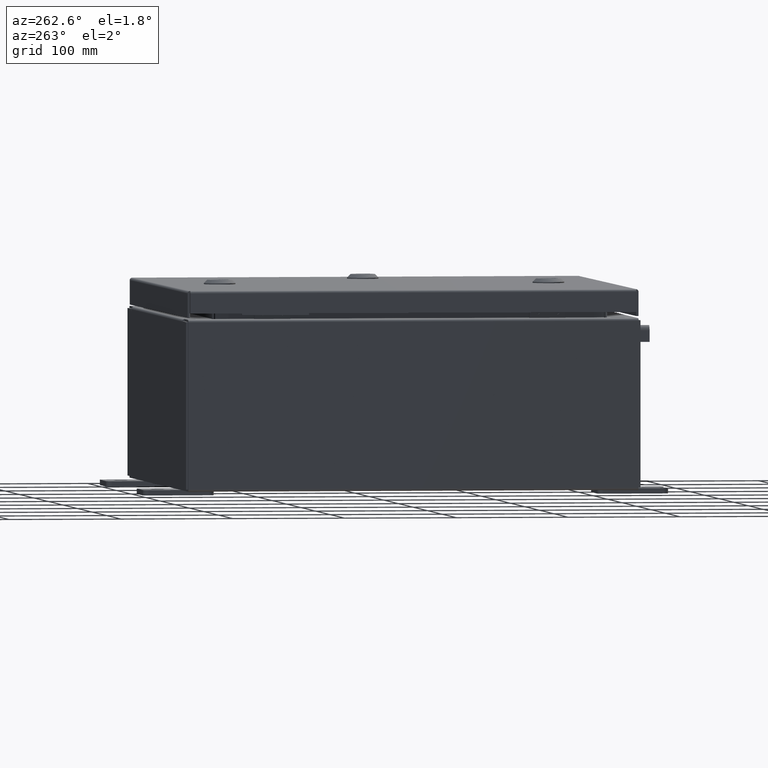
[diagram: clean part render]
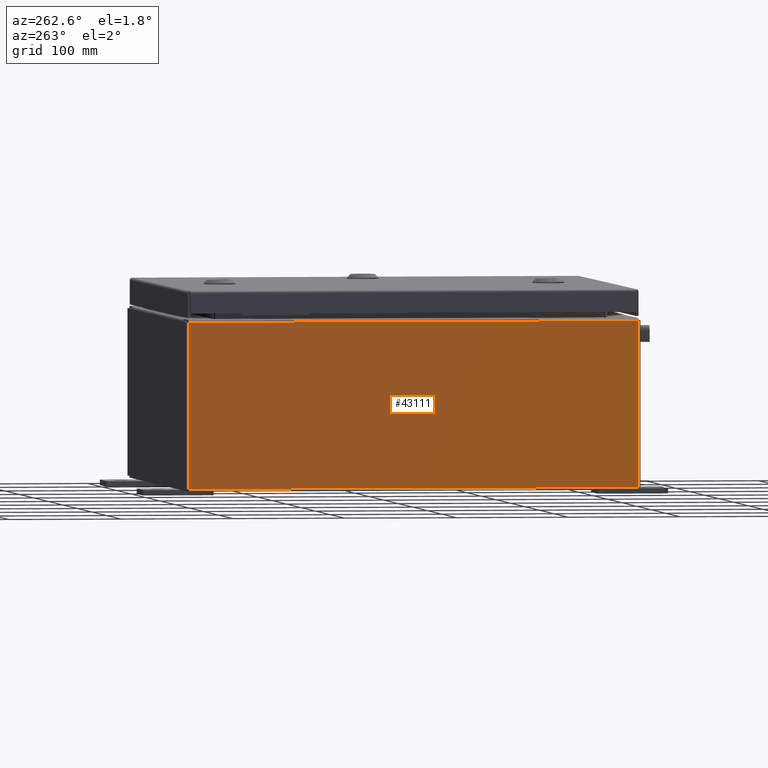
[diagram: same view with one face highlighted and labeled with its STEP entity id]
A machine part, auxiliary view. The second image highlights one B-rep face of the part: STEP entity #43111.
In plain terms, the highlighted planar face has unit normal (1, 0, 0).
Its self-contained STEP definition (entity closure, byte-faithful):
#2630 = ORIENTED_EDGE ( 'NONE', *, *, #58221, .T. ) ;
#6355 = DIRECTION ( 'NONE',  ( -0.0000000000000000000, 1.000000000000000000, -0.0000000000000000000 ) ) ;
#6637 = VERTEX_POINT ( 'NONE', #61231 ) ;
#7192 = EDGE_CURVE ( 'NONE', #37489, #31703, #33954, .T. ) ;
#8858 = DIRECTION ( 'NONE',  ( 1.000000000000000000, 0.0000000000000000000, 3.503965158194251300E-015 ) ) ;
#9669 = FACE_OUTER_BOUND ( 'NONE', #39181, .T. ) ;
#10621 = DIRECTION ( 'NONE',  ( -3.503965158194252100E-015, 1.844192188523290500E-016, 1.000000000000000000 ) ) ;
#11844 = CARTESIAN_POINT ( 'NONE',  ( -8.000000000000021300, 7.925299999999998200, 5.837599999999999200 ) ) ;
#12377 = LINE ( 'NONE', #54632, #22196 ) ;
#17670 = CARTESIAN_POINT ( 'NONE',  ( -8.000000000000023100, -7.925300000000000900, 5.837599999999999200 ) ) ;
#19536 = ORIENTED_EDGE ( 'NONE', *, *, #42125, .F. ) ;
#22196 = VECTOR ( 'NONE', #30480, 39.37007874015748100 ) ;
#22539 = DIRECTION ( 'NONE',  ( 0.0000000000000000000, 1.000000000000000000, 0.0000000000000000000 ) ) ;
#22542 = VERTEX_POINT ( 'NONE', #11844 ) ;
#22738 = VECTOR ( 'NONE', #6355, 39.37007874015748100 ) ;
#29877 = VECTOR ( 'NONE', #22539, 39.37007874015748100 ) ;
#30480 = DIRECTION ( 'NONE',  ( 3.503965158194252100E-015, 0.0000000000000000000, -1.000000000000000000 ) ) ;
#31412 = LINE ( 'NONE', #17670, #29877 ) ;
#31703 = VERTEX_POINT ( 'NONE', #43797 ) ;
#32678 = ORIENTED_EDGE ( 'NONE', *, *, #38578, .T. ) ;
#33954 = LINE ( 'NONE', #44477, #48371 ) ;
#37088 = LINE ( 'NONE', #44218, #22738 ) ;
#37489 = VERTEX_POINT ( 'NONE', #43089 ) ;
#37822 = PLANE ( 'NONE',  #55530 ) ;
#38578 = EDGE_CURVE ( 'NONE', #22542, #6637, #12377, .T. ) ;
#39181 = EDGE_LOOP ( 'NONE', ( #2630, #32678, #19536, #40841 ) ) ;
#40841 = ORIENTED_EDGE ( 'NONE', *, *, #7192, .T. ) ;
#42125 = EDGE_CURVE ( 'NONE', #37489, #6637, #37088, .T. ) ;
#42703 = DIRECTION ( 'NONE',  ( 3.503965158194251300E-015, 0.0000000000000000000, -1.000000000000000000 ) ) ;
#43089 = CARTESIAN_POINT ( 'NONE',  ( -8.000000000000001800, -7.925300000000000900, 0.01299999999999984700 ) ) ;
#43111 = ADVANCED_FACE ( 'NONE', ( #9669 ), #37822, .F. ) ;
#43797 = CARTESIAN_POINT ( 'NONE',  ( -8.000000000000023100, -7.925300000000000000, 5.837599999999999200 ) ) ;
#44218 = CARTESIAN_POINT ( 'NONE',  ( -8.000000000000001800, 7.925299999999998200, 0.01299999999999984700 ) ) ;
#44477 = CARTESIAN_POINT ( 'NONE',  ( -8.000000000000001800, -7.925300000000000900, -2.683095728639523400E-014 ) ) ;
#48371 = VECTOR ( 'NONE', #10621, 39.37007874015748100 ) ;
#54632 = CARTESIAN_POINT ( 'NONE',  ( -8.000000000000001800, 7.925299999999998200, -2.829253492156559800E-014 ) ) ;
#55530 = AXIS2_PLACEMENT_3D ( 'NONE', #57092, #8858, #42703 ) ;
#57092 = CARTESIAN_POINT ( 'NONE',  ( -8.000000000000001800, 0.0000000000000000000, -2.829253492156559800E-014 ) ) ;
#58221 = EDGE_CURVE ( 'NONE', #31703, #22542, #31412, .T. ) ;
#61231 = CARTESIAN_POINT ( 'NONE',  ( -8.000000000000001800, 7.925299999999998200, 0.01299999999999984500 ) ) ;